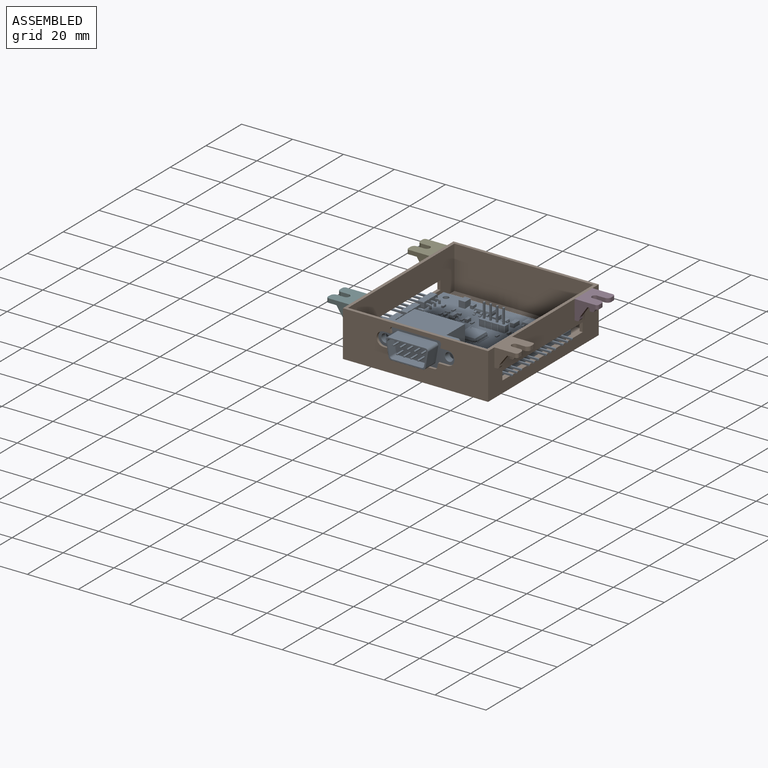
[diagram: assembled view]
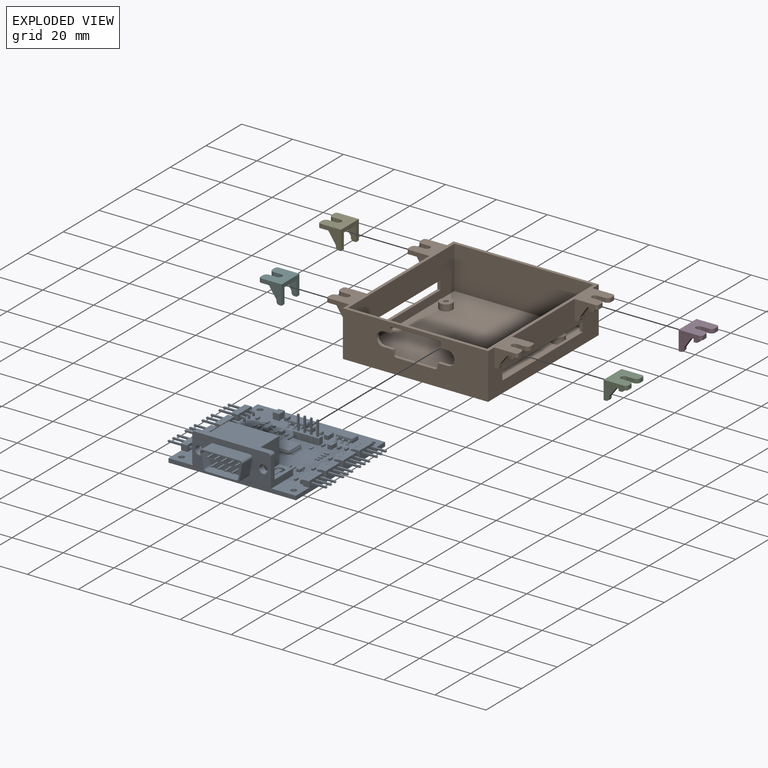
[diagram: exploded view]
GUIDED TOUR — FREECAD ASSEMBLY "ControlBox_Stuffed"

This assembly has 6 components, labeled P0..P5 below (a component is one placed body or linked part; the same part can appear more than once), held together by 0 modeled joints plus 5 derived contact edges. A joint is a constraint between two components; its type names the relative motion it leaves free:
  CONTACT — a derived adjacency edge — the two components touch in the source model (clearance under 2% of the assembly's diagonal); it is measured from the geometry, not a modeled constraint.
Axis/direction vectors are unit vectors and 'through' points are millimeter coordinates, both in the assembly's world frame.

MATES
  1. CONTACT "contact_0_1": P0 <-> P1, contact direction (0.000, 1.000, 0.000) through (22.85, -27.02, 3.55) mm (derived from contact, not a modeled constraint)
  2. CONTACT "contact_1_2": P1 <-> P2, contact direction (1.000, 0.000, 0.000) through (28.50, -17.50, 16.40) mm (derived from contact, not a modeled constraint)
  3. CONTACT "contact_1_3": P1 <-> P3, contact direction (1.000, 0.000, 0.000) through (28.50, 27.50, 16.40) mm (derived from contact, not a modeled constraint)
  4. CONTACT "contact_1_4": P1 <-> P4, contact direction (-1.000, 0.000, 0.000) through (-28.50, 17.50, 18.00) mm (derived from contact, not a modeled constraint)
  5. CONTACT "contact_1_5": P1 <-> P5, contact direction (-1.000, 0.000, 0.000) through (-28.50, -27.50, 16.40) mm (derived from contact, not a modeled constraint)

ASSEMBLY ORDER
  1. P1 — the base component [order heuristic]
  2. P0 — core [order heuristic]
  3. P3 [order verified]
  4. P5 [order verified]
  5. P2 [order verified]
  6. P4 [order verified]
(P3, P5 verified with a relaxed clearance tolerance: the source model stores slight part interference there.)
Order-tag legend:
  [order verified] — this step's position reverses a verified removal order: the component was checked to insert without passing through the ones already placed.
  [order heuristic] — the first 2 components form the assembly's core: parts whose collision-free extraction could not be verified, listed in mate-graph order.

Of the 6 components, 5 carry a construction recipe — the FreeCAD feature program (sketches with constraints, then the solid features that consume them) that regenerates the part from scratch, quoted from this document or from the linked companion document it references; the rest are supplied as boundary geometry only. The tour below walks the components in assembly order: each is shown spotlighted twice — in the assembled view, then in the exploded view, where a leader line traces a displaced component back to its assembled socket (components that stay in place when exploded have no leader line; saturated green if recipe-attached, orange if geometry-only; every other component desaturated gray) — followed by its recipe or geometry summary and the mates that hold it.
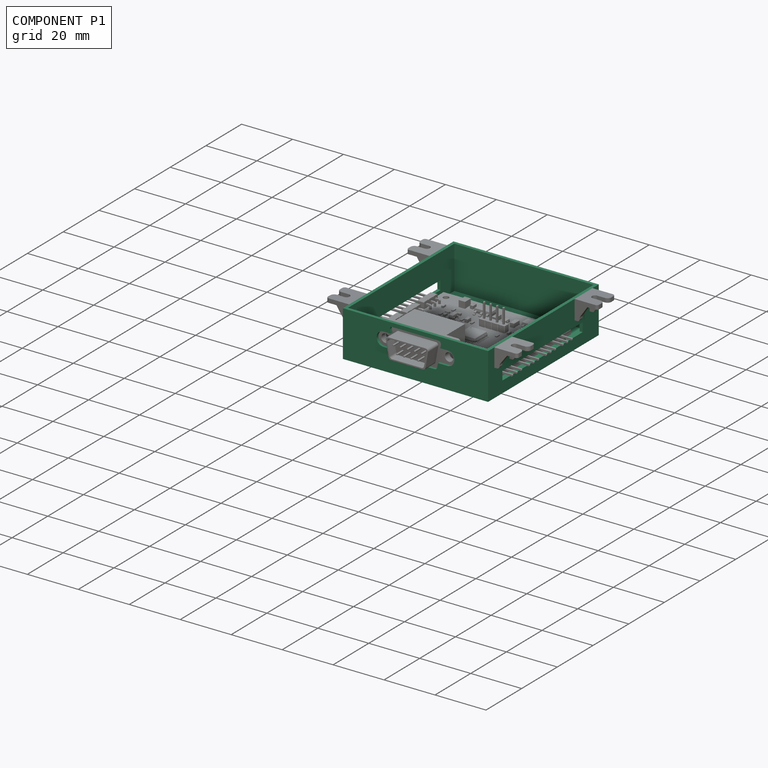
[diagram: component P1 — assembled]
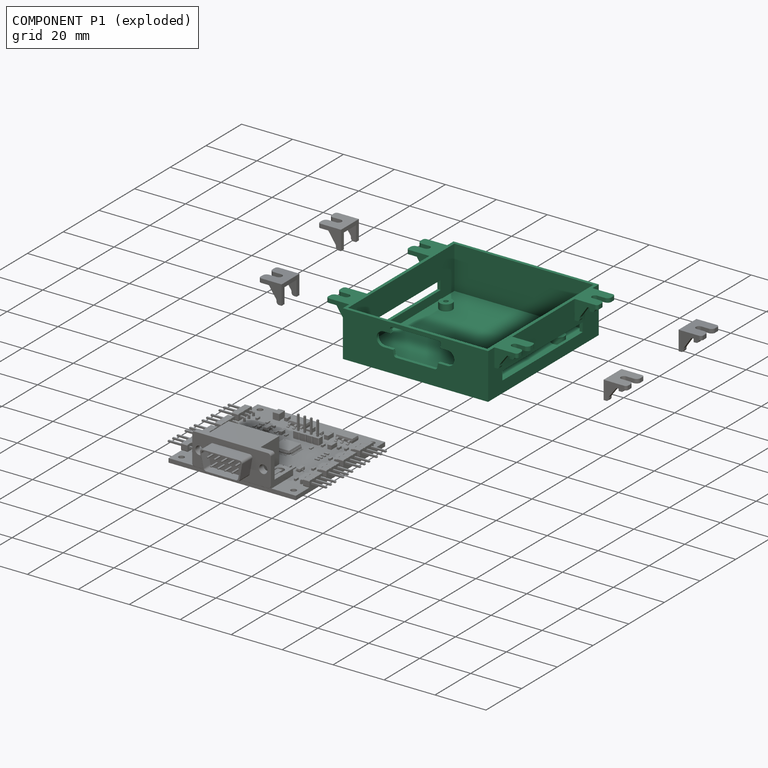
[diagram: component P1 — exploded]
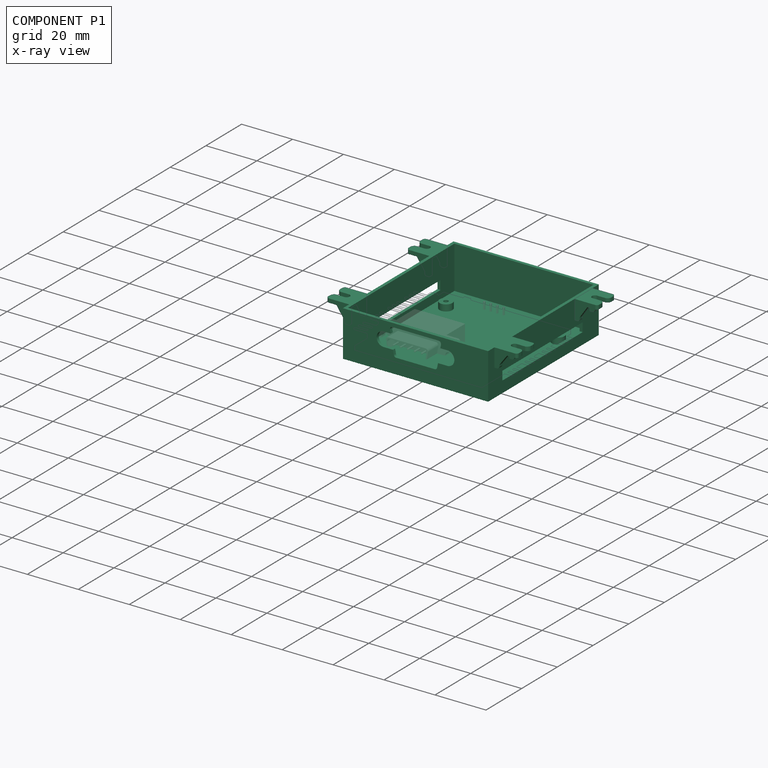
[diagram: component P1 — x-ray view]
COMPONENT P1 — recipe-attached ("Body", modeled in this document).
Held by: resting contact with P0 (derived edge); resting contact with P2 (derived edge); resting contact with P3 (derived edge); resting contact with P4 (derived edge); resting contact with P5 (derived edge).
Construction recipe (the document's own serialized feature program — sketch geometry with constraints, then the solid features built on it; lengths are millimeters unless a unit is written):

FEATURE [Sketcher::SketchObject] Sketch
  FullyConstrained = true
  MapMode = 5
  Support = -> [XY_Plane]
  expr: Constraints[8] = <<Params>>.box_width_external
  expr: Constraints[9] = <<Params>>.box_length_external
  sketch-geometry (4):
    g0: LineSegment StartX=-28.5 StartY=31 StartZ=0 EndX=28.5 EndY=31 EndZ=0
    g1: LineSegment StartX=28.5 StartY=31 StartZ=0 EndX=28.5 EndY=-31 EndZ=0
    g2: LineSegment StartX=28.5 StartY=-31 StartZ=0 EndX=-28.5 EndY=-31 EndZ=0
    g3: LineSegment StartX=-28.5 StartY=-31 StartZ=0 EndX=-28.5 EndY=31 EndZ=0
  constraints (10):
    c: Coincident(g0,g1)
    c: Coincident(g1,g2)
    c: Coincident(g2,g3)
    c: Coincident(g3,g0)
    c: Horizontal(g2)
    c: Vertical(g3)
    c: Symmetric(g0,g1,g-1)
    c: Symmetric(g0,g0,g-2)
    c: DistanceY(g2,g0) = 62
    c: DistanceX(g0,g0) = 57
FEATURE [PartDesign::Pad] Pad  label="BoxSkin"
  Direction = (0,0,1)
  Length = 18
  Length2 = 10
  Profile = -> Sketch
  ReferenceAxis = -> Sketch [N_Axis]
  Type = 0
  expr: Length = <<Params>>.box_height
FEATURE [PartDesign::Plane] DatumPlane  label="PlaneCavity"
  Length = 88.6382
  MapMode = 5
  Placement = pos=(0,0,18) rot=(0,0,1;0rad)
  ResizeMode = 0
  Support = -> [Pad]
  Width = 75.6382
FEATURE [Sketcher::SketchObject] Sketch001
  FullyConstrained = true
  MapMode = 5
  Placement = pos=(0,0,18) rot=(0,0,1;0rad)
  Support = -> [DatumPlane]
  expr: Constraints[8] = <<Params>>.box_length_internal
  expr: Constraints[9] = <<Params>>.box_width_internal
  sketch-geometry (4):
    g0: LineSegment StartX=-27.3 StartY=29.8 StartZ=0 EndX=27.3 EndY=29.8 EndZ=0
    g1: LineSegment StartX=27.3 StartY=29.8 StartZ=0 EndX=27.3 EndY=-29.8 EndZ=0
    g2: LineSegment StartX=27.3 StartY=-29.8 StartZ=0 EndX=-27.3 EndY=-29.8 EndZ=0
    g3: LineSegment StartX=-27.3 StartY=-29.8 StartZ=0 EndX=-27.3 EndY=29.8 EndZ=0
  constraints (10):
    c: Coincident(g0,g1)
    c: Coincident(g1,g2)
    c: Coincident(g2,g3)
    c: Coincident(g3,g0)
    c: Horizontal(g2)
    c: Vertical(g1)
    c: Symmetric(g0,g0,g-2)
    c: Symmetric(g0,g2,g-1)
    c: DistanceX(g0,g0) = 54.6
    c: DistanceY(g2,g0) = 59.6
FEATURE [PartDesign::Pocket] Pocket  label="Cavity"
  BaseFeature = -> Pad
  Direction = (0,0,-1)
  Length = 16.8
  Length2 = 5
  Profile = -> Sketch001
  ReferenceAxis = -> Sketch001 [N_Axis]
  Type = 0
  expr: Length = <<Params>>.box_depth
FEATURE [PartDesign::Plane] DatumPlane001  label="PlaneSideWindows"
  Length = 73.1355
  MapMode = 5
  Placement = pos=(28.5,0,0) rot=(0.57735,0.57735,0.57735;2.0944rad)
  ResizeMode = 0
  Support = -> [Pocket]
  Width = 61.1355
FEATURE [Sketcher::SketchObject] Sketch002
  FullyConstrained = true
  MapMode = 5
  Placement = pos=(28.5,0,0) rot=(0.57735,0.57735,0.57735;2.0944rad)
  Support = -> [Pocket]
  expr: Constraints[10] = <<Params>>.side_window_y
  expr: Constraints[11] = <<Params>>.side_window_z
  expr: Constraints[8] = <<Params>>.side_window_length
  expr: Constraints[9] = <<Params>>.side_window_height
  sketch-geometry (4):
    g0: LineSegment StartX=-23 StartY=8 StartZ=0 EndX=22 EndY=8 EndZ=0
    g1: LineSegment StartX=22 StartY=8 StartZ=0 EndX=22 EndY=4.5 EndZ=0
    g2: LineSegment StartX=22 StartY=4.5 StartZ=0 EndX=-23 EndY=4.5 EndZ=0
    g3: LineSegment StartX=-23 StartY=4.5 StartZ=0 EndX=-23 EndY=8 EndZ=0
  constraints (12):
    c: Coincident(g0,g1)
    c: Coincident(g1,g2)
    c: Coincident(g2,g3)
    c: Coincident(g3,g0)
    c: Horizontal(g0)
    c: Horizontal(g2)
    c: Vertical(g1)
    c: Vertical(g3)
    c: DistanceX(g0,g0) = 45
    c: DistanceY(g2,g0) = 3.5
    c: DistanceX(g2,g-1) = 23
    c: DistanceY(g-1,g2) = 4.5
FEATURE [PartDesign::Pocket] Pocket001  label="SideWindows"
  BaseFeature = -> Pocket
  Direction = (-1,0,0)
  Length = 5
  Length2 = 5
  Profile = -> Sketch002
  ReferenceAxis = -> Sketch002 [N_Axis]
  Type = 1
FEATURE [PartDesign::SubShapeBinder] Binder
  BindCopyOnChange = 0
  BindMode = 0
  ClaimChildren = false
  Context = -> Body [Binder.]
  Fuse = false
  MakeFace = true
  OffsetFill = false
  OffsetIntersection = false
  OffsetJoinType = 0
  OffsetOpenResult = false
  PartialLoad = false
  Relative = true
  Support = -> [Board_42b7[Board_Geoms_42b7.Pcb_42b7.Edge14,Board_Geoms_42b7.Pcb_42b7.Edge107,Board_Geoms_42b7.Pcb_42b7.Edge140,Board_Geoms_42b7.Pcb_42b7.Edge65]]
  _Version = 2
FEATURE [Sketcher::SketchObject] Sketch003
  ExternalGeometry = -> [Pocket001,Binder]
  FullyConstrained = true
  MapMode = 5
  Placement = pos=(0,0,1.2) rot=(0,0,1;0rad)
  Support = -> [Pocket001]
  sketch-geometry (8):
    g0: Circle CenterX=22 CenterY=17.5 CenterZ=0 NormalX=0 NormalY=0 NormalZ=1 AngleXU=0 Radius=0.9
    g1: Circle CenterX=-22 CenterY=17.5 CenterZ=0 NormalX=0 NormalY=0 NormalZ=1 AngleXU=0 Radius=0.9
    g2: Circle CenterX=-22 CenterY=-26.5 CenterZ=0 NormalX=0 NormalY=0 NormalZ=1 AngleXU=0 Radius=0.9
    g3: Circle CenterX=22 CenterY=-26.5 CenterZ=0 NormalX=0 NormalY=0 NormalZ=1 AngleXU=0 Radius=0.9
    g4: Circle CenterX=22 CenterY=-26.5 CenterZ=0 NormalX=0 NormalY=0 NormalZ=1 AngleXU=0 Radius=2.5
    g5: Circle CenterX=-22 CenterY=-26.5 CenterZ=0 NormalX=0 NormalY=0 NormalZ=1 AngleXU=0 Radius=2.5
    g6: Circle CenterX=22 CenterY=17.5 CenterZ=0 NormalX=0 NormalY=0 NormalZ=1 AngleXU=0 Radius=2.5
    g7: Circle CenterX=-22 CenterY=17.5 CenterZ=0 NormalX=0 NormalY=0 NormalZ=1 AngleXU=0 Radius=2.5
  constraints (16):
    c: Equal(g1,g0)
    c: Equal(g1,g2)
    c: Equal(g1,g3)
    c: Diameter(g1) = 1.8
    c: Coincident(g3,g-10)
    c: Coincident(g4,g3)
    c: Coincident(g2,g-11)
    c: Coincident(g5,g2)
    c: Coincident(g-8,g1)
    c: Coincident(g7,g1)
    c: Coincident(g0,g-9)
    c: Coincident(g6,g0)
    c: Diameter(g7) = 5
    c: Equal(g7,g5)
    c: Equal(g5,g4)
    c: Equal(g4,g6)
FEATURE [PartDesign::Pad] Pad001  label="FixingBosses"
  BaseFeature = -> Pocket001
  Direction = (0,0,1)
  Length = 2.5
  Length2 = 10
  Profile = -> Sketch003
  ReferenceAxis = -> Sketch003 [N_Axis]
  Type = 0
FEATURE [PartDesign::Boolean] Boolean
  BaseFeature = -> Pad001
  Group = -> [Body002,Body001,Body004,Body003]
  Type = 0
FEATURE [PartDesign::Plane] DatumPlane006  label="PlaneDB9Cutout"
  AttachmentOffset = pos=(0,0,1) rot=(0,0,1;0rad)
  Length = 87.2474
  MapMode = 5
  Placement = pos=(0,-32,2e-16) rot=(1,0,0;1.5708rad)
  ResizeMode = 0
  Support = -> [Boolean]
  Width = 62.2474
FEATURE [Sketcher::SketchObject] Sketch012
  FullyConstrained = true
  MapMode = 5
  Placement = pos=(0,-32,2e-16) rot=(1,0,0;1.5708rad)
  Support = -> [DatumPlane006]
  sketch-geometry (16):
    g0: LineSegment StartX=-9.02284 StartY=16.5 StartZ=0 EndX=9.02284 EndY=16.5 EndZ=0
    g1: LineSegment StartX=-10 StartY=15.2875 StartZ=0 EndX=-9.72 EndY=14 EndZ=0
    g2: LineSegment StartX=-7.5195 StartY=6 StartZ=0 EndX=7.5195 EndY=6 EndZ=0
    g3: LineSegment StartX=8.5 StartY=6.8035 StartZ=0 EndX=8.84 EndY=8.5 EndZ=0
    g4: ArcOfCircle CenterX=-12.5 CenterY=11.25 CenterZ=0 NormalX=0 NormalY=0 NormalZ=1 AngleXU=0 Radius=2.75 StartAngle=1.5708 EndAngle=4.71239
    g5: ArcOfCircle CenterX=12.5 CenterY=11.25 CenterZ=0 NormalX=0 NormalY=0 NormalZ=1 AngleXU=0 Radius=2.75 StartAngle=4.71239 EndAngle=7.85398
    g6: ArcOfCircle CenterX=9.02284 CenterY=15.5 CenterZ=0 NormalX=0 NormalY=0 NormalZ=1 AngleXU=0 Radius=1 StartAngle=6.06904 EndAngle=7.85398
    g7: ArcOfCircle CenterX=-9.02284 CenterY=15.5 CenterZ=0 NormalX=0 NormalY=0 NormalZ=1 AngleXU=0 Radius=1 StartAngle=1.5708 EndAngle=3.35574
    g8: ArcOfCircle CenterX=-7.5195 CenterY=7 CenterZ=0 NormalX=0 NormalY=0 NormalZ=1 AngleXU=0 Radius=1 StartAngle=3.33938 EndAngle=4.71239
    g9: ArcOfCircle CenterX=7.5195 CenterY=7 CenterZ=0 NormalX=0 NormalY=0 NormalZ=1 AngleXU=0 Radius=1 StartAngle=4.71239 EndAngle=6.08539
    g10: LineSegment StartX=-12.5 StartY=14 StartZ=0 EndX=-9.72 EndY=14 EndZ=0
    g11: LineSegment StartX=-12.5 StartY=8.5 StartZ=0 EndX=-8.84 EndY=8.5 EndZ=0
    g12: LineSegment StartX=-8.84 StartY=8.5 StartZ=0 EndX=-8.5 EndY=6.8035 EndZ=0
    g13: LineSegment StartX=12.5 StartY=14 StartZ=0 EndX=9.72 EndY=14 EndZ=0
    g14: LineSegment StartX=12.5 StartY=8.5 StartZ=0 EndX=8.84 EndY=8.5 EndZ=0
    g15: LineSegment StartX=9.72 StartY=14 StartZ=0 EndX=10 EndY=15.2875 EndZ=0
  constraints (41):
    c: DistanceX(g4,g5) = 25
    c: Diameter(g4) = 5.5
    c: Equal(g5,g4)
    c: Symmetric(g4,g5,g-2)
    c: Tangent(g0,g6) = 1.5708
    c: Coincident(g15,g6) = -1.5708
    c: Tangent(g1,g7) = -1.5708
    c: Tangent(g0,g7) = 1.5708
    c: Coincident(g12,g8) = -1.5708
    c: Tangent(g2,g8) = -1.5708
    c: Tangent(g3,g9) = -1.5708
    c: Tangent(g2,g9) = -1.5708
    c: Diameter(g7) = 2
    c: Equal(g7,g6)
    c: Equal(g8,g9)
    c: Equal(g9,g7)
    c: Symmetric(g0,g0,g-2)
    c: Symmetric(g2,g2,g-2)
    c: DistanceX(g1,g15) = 20
    c: DistanceX(g12,g3) = 17
    c: DistanceY(g2,g0) = 10.5
    c: DistanceY(g-1,g2) = 6
    c: DistanceY(g2,g4) = 5.25
    c: Horizontal(g10)
    c: Horizontal(g11)
    c: Tangent(g4,g11) = -1.5708
    c: Tangent(g4,g10) = 1.5708
    c: Coincident(g1,g10)
    c: Coincident(g12,g11)
    c: DistanceX(g4,g1) = 2.78
    c: DistanceX(g4,g11) = 3.66
    c: DistanceX(g11,g8) = 0.34
    c: Horizontal(g13)
    c: Horizontal(g14)
    c: Tangent(g5,g13) = -1.5708
    c: Tangent(g5,g14) = 1.5708
    c: Coincident(g3,g14)
    c: Coincident(g15,g13)
    c: Equal(g1,g15)
    c: DistanceX(g13,g5) = 2.78
    c: DistanceX(g3,g3) = 0.34
FEATURE [PartDesign::Pocket] Pocket002  label="DB9Cutout"
  BaseFeature = -> Boolean
  Direction = (0,1,-2e-16)
  Length = 5
  Length2 = 5
  Profile = -> Sketch012
  ReferenceAxis = -> Sketch012 [N_Axis]
  Type = 0
FEATURE [PartDesign::Body] Body
  Group = -> [Sketch,Pad,DatumPlane,Sketch001,Pocket,DatumPlane001,Sketch002,Pocket001,Sketch003,Pad001,Boolean,DatumPlane006,Sketch012,Binder,Pocket002]
  Origin = -> Origin
  Tip = -> Pocket002
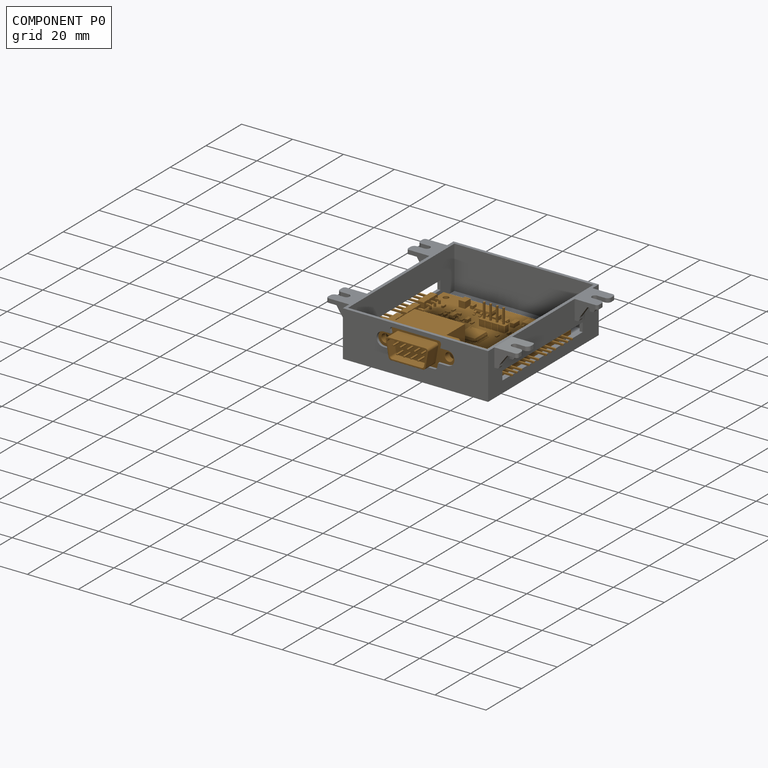
[diagram: component P0 — assembled]
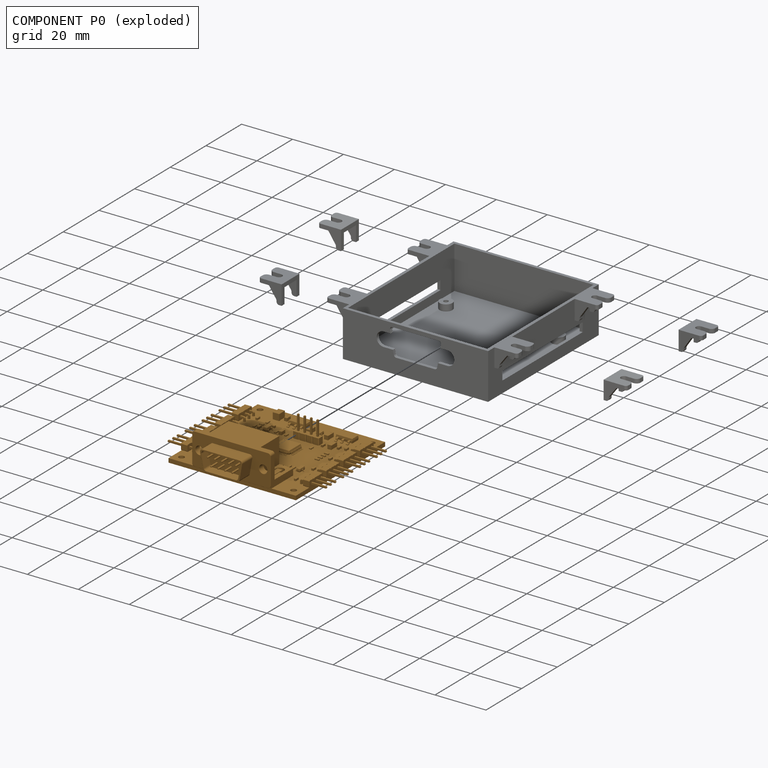
[diagram: component P0 — exploded]
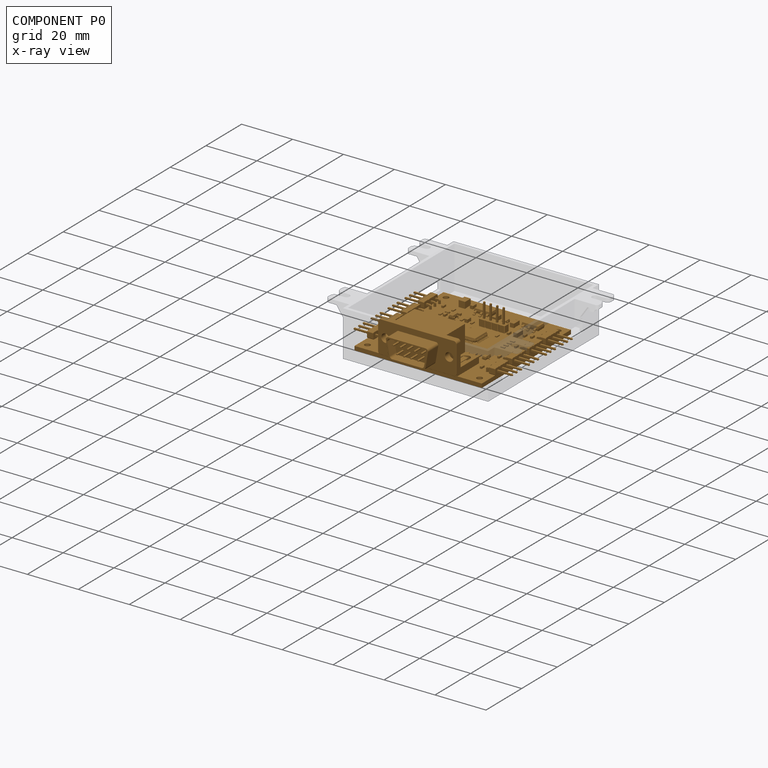
[diagram: component P0 — x-ray view]
COMPONENT P0 — geometry summary ("DGT-01"; no construction recipe available for this part):
  bounding box: 62.3 x 56.3 x 17.9 mm
  tessellated surface: 80,604 triangles
  volume: 8081 mm^3 (13% of its bounding box)
Held by: resting contact with P1 (derived edge).
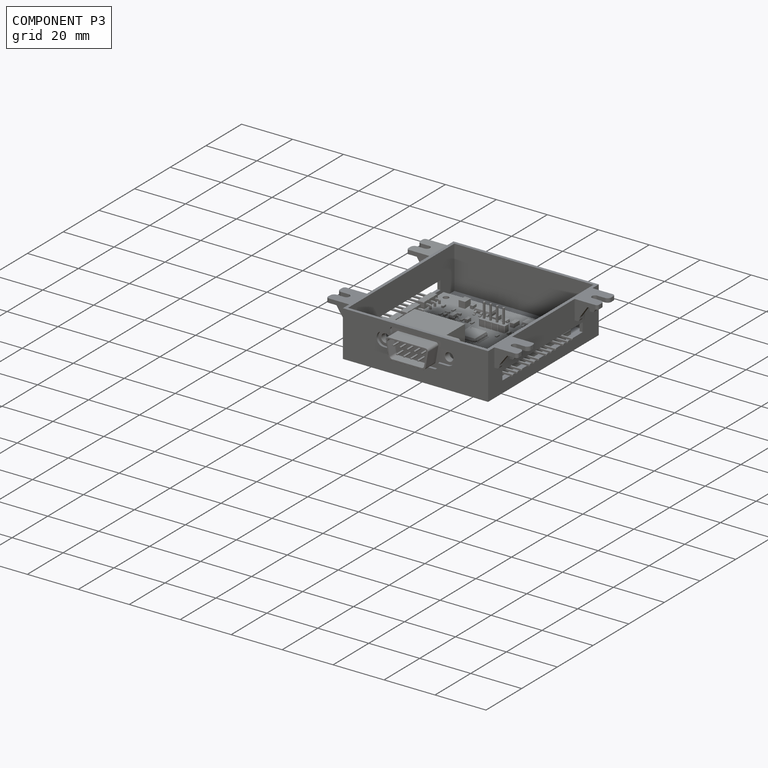
[diagram: component P3 — assembled]
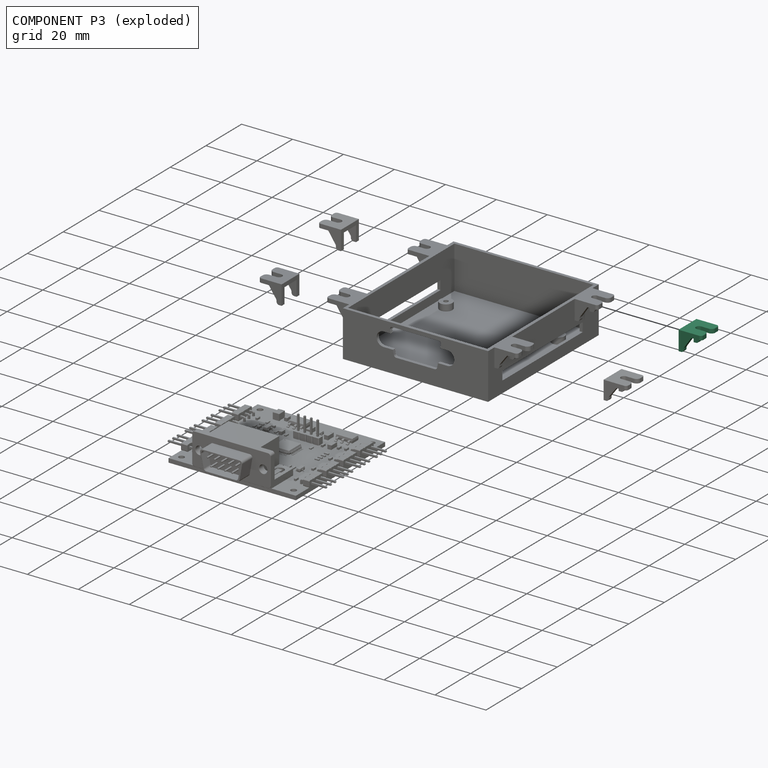
[diagram: component P3 — exploded]
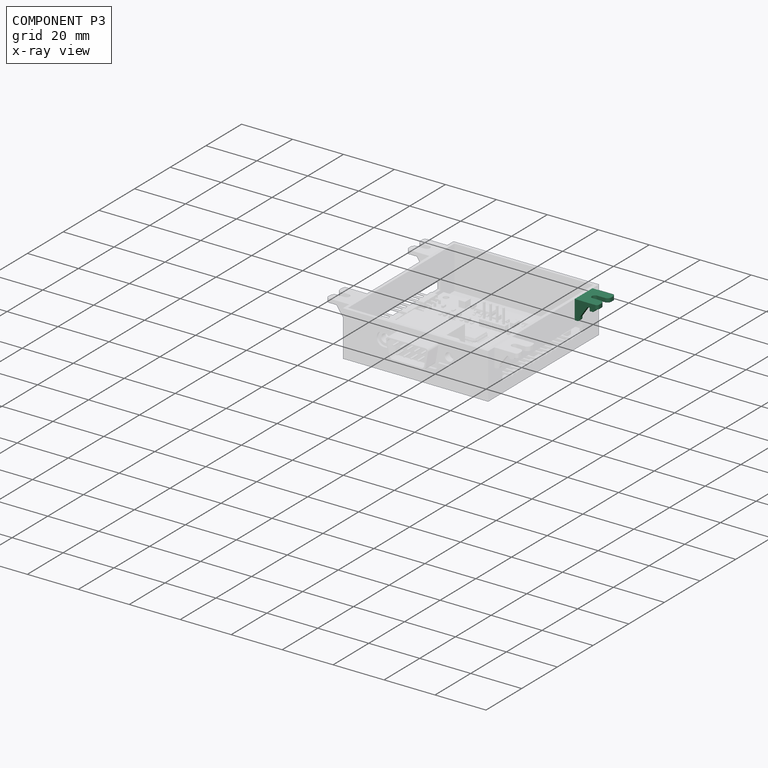
[diagram: component P3 — x-ray view]
COMPONENT P3 — recipe-attached ("Tab2", modeled in this document).
Held by: resting contact with P1 (derived edge).
Construction recipe (the document's own serialized feature program — sketch geometry with constraints, then the solid features built on it; lengths are millimeters unless a unit is written):

FEATURE [Sketcher::SketchObject] Sketch006
  FullyConstrained = true
  MapMode = 5
  Support = -> [XY_Plane010]
  expr: Constraints[13] = <<Params002>>.tab_length
  expr: Constraints[14] = <<Params002>>.tab_width
  expr: Constraints[19] = <<Params002>>.tab_hole_diameter
  expr: Constraints[20] = <<Params002>>.tab_hole_x
  sketch-geometry (8):
    g0: LineSegment StartX=-4.5 StartY=5 StartZ=0 EndX=4.5 EndY=5 EndZ=0
    g1: LineSegment StartX=4.5 StartY=5 StartZ=0 EndX=4.5 EndY=1.2 EndZ=0
    g2: LineSegment StartX=4.5 StartY=-5 StartZ=0 EndX=-4.5 EndY=-5 EndZ=0
    g3: LineSegment StartX=-4.5 StartY=-5 StartZ=0 EndX=-4.5 EndY=5 EndZ=0
    g4: ArcOfCircle CenterX=-3e-16 CenterY=0 CenterZ=0 NormalX=0 NormalY=0 NormalZ=1 AngleXU=0 Radius=1.2 StartAngle=1.5708 EndAngle=4.71239
    g5: LineSegment StartX=-5e-16 StartY=1.2 StartZ=0 EndX=4.5 EndY=1.2 EndZ=0
    g6: LineSegment StartX=4.5 StartY=-1.2 StartZ=0 EndX=-9e-16 EndY=-1.2 EndZ=0
    g7: LineSegment StartX=4.5 StartY=-1.2 StartZ=0 EndX=4.5 EndY=-5 EndZ=0
  constraints (21):
    c: Coincident(g0,g1)
    c: Coincident(g7,g2)
    c: Coincident(g2,g3)
    c: Coincident(g3,g0)
    c: Horizontal(g2)
    c: Vertical(g1)
    c: Symmetric(g0,g0,g-2)
    c: Symmetric(g0,g2,g-1)
    c: PointOnObject(g4,g-1)
    c: Horizontal(g5)
    c: Horizontal(g6)
    c: Coincident(g1,g5)
    c: Coincident(g7,g6)
    c: DistanceX(g0,g0) = 9
    c: DistanceY(g2,g0) = 10
    c: Tangent(g4,g5) = 1.5708
    c: Tangent(g6,g4) = 1.5708
    c: Vertical(g7)
    c: Vertical(g6,g1)
    c: Diameter(g4) = 2.4
    c: DistanceX(g0,g4) = 4.5
FEATURE [PartDesign::Pad] Pad004
  Direction = (0,0,1)
  Length = 1.6
  Length2 = 10
  Profile = -> Sketch006
  ReferenceAxis = -> Sketch006 [N_Axis]
  Type = 0
  expr: Length = <<Params002>>.tab_thickness
FEATURE [PartDesign::Plane] DatumPlane003  label="PlaneRib001"
  Length = 60
  MapMode = 5
  Placement = pos=(0,-5,0) rot=(1,0,0;1.5708rad)
  ResizeMode = 0
  Support = -> [Pad004]
  Width = 60
FEATURE [Sketcher::SketchObject] Sketch007
  ExternalGeometry = -> [Pad004]
  FullyConstrained = true
  MapMode = 5
  Placement = pos=(0,-5,0) rot=(1,0,0;1.5708rad)
  Support = -> [DatumPlane003]
  expr: Constraints[11] = <<Params002>>.tab_rib_height
  expr: Constraints[12] = <<Params002>>.tab_rib_length
  expr: Constraints[13] = <<Params002>>.tab_rib_insert
  expr: Constraints[6] = <<Params002>>.tab_height
  sketch-geometry (5):
    g0: LineSegment StartX=-4.5 StartY=0 StartZ=0 EndX=-4.5 EndY=-6 EndZ=0
    g1: LineSegment StartX=-4.5 StartY=-6 StartZ=0 EndX=-2.5 EndY=-6 EndZ=0
    g2: LineSegment StartX=0.5 StartY=0 StartZ=0 EndX=-4.5 EndY=0 EndZ=0
    g3: LineSegment StartX=-2.5 StartY=-6 StartZ=0 EndX=-2.5 EndY=-4.4 EndZ=0
    g4: LineSegment StartX=-2.5 StartY=-4.4 StartZ=0 EndX=0.5 EndY=0 EndZ=0
  constraints (14):
    c: Coincident(g0,g-3)
    c: Vertical(g0)
    c: Coincident(g1,g0)
    c: PointOnObject(g2,g-1)
    c: Coincident(g2,g0)
    c: Horizontal(g1)
    c: DistanceY(g0,g0) = 6
    c: Coincident(g3,g1)
    c: Vertical(g3)
    c: Coincident(g4,g3)
    c: Coincident(g4,g2)
    c: DistanceY(g3,g-1) = 4.4
    c: DistanceX(g0,g2) = 5
    c: DistanceX(g0,g1) = 2
FEATURE [PartDesign::Pad] Pad005  label="TabRib004"
  BaseFeature = -> Pad004
  Direction = (0,-1,2e-16)
  Length = 1.6
  Length2 = 10
  Profile = -> Sketch007
  ReferenceAxis = -> Sketch007 [N_Axis]
  Reversed = true
  Type = 0
  expr: Length = <<Params002>>.tab_rib_thickness
FEATURE [PartDesign::LinearPattern] LinearPattern001  label="TabRib003"
  BaseFeature = -> Pad005
  Direction = -> Y_Axis010
  Length = 8.4
  Occurrences = 2
  Originals = -> [Pad005]
  expr: Length = <<Params002>>.tab_ribs_gap
FEATURE [PartDesign::Fillet] Fillet004
  Base = -> LinearPattern001 [Edge51,Edge52]
  BaseFeature = -> LinearPattern001
  Radius = 1
  SupportTransform = false
  UseAllEdges = false
FEATURE [PartDesign::Fillet] Fillet005
  Base = -> Fillet004 [Edge14,Edge52]
  BaseFeature = -> Fillet004
  Radius = 1
  SupportTransform = false
  UseAllEdges = false
FEATURE [PartDesign::Fillet] Fillet006
  Base = -> Fillet005 [Edge19,Edge53]
  BaseFeature = -> Fillet005
  Radius = 1
  SupportTransform = false
  UseAllEdges = false
FEATURE [PartDesign::Fillet] Fillet007
  Base = -> Fillet006 [Edge38,Edge43]
  BaseFeature = -> Fillet006
  Radius = 1.5
  SupportTransform = false
  UseAllEdges = false
FEATURE [PartDesign::Body] Body002  label="Tab2"
  Group = -> [Sketch006,Pad004,DatumPlane003,Sketch007,Pad005,LinearPattern001,Fillet004,Fillet005,Fillet006,Fillet007]
  Origin = -> Origin010
  Placement = pos=(33,22.5,16.4) rot=(0,0,1;0rad)
  Tip = -> Fillet007
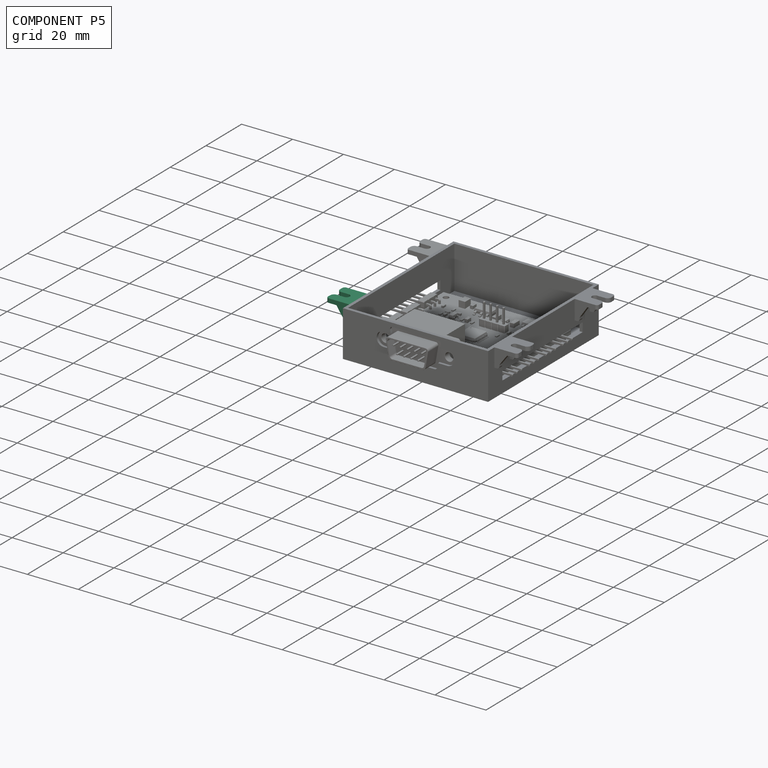
[diagram: component P5 — assembled]
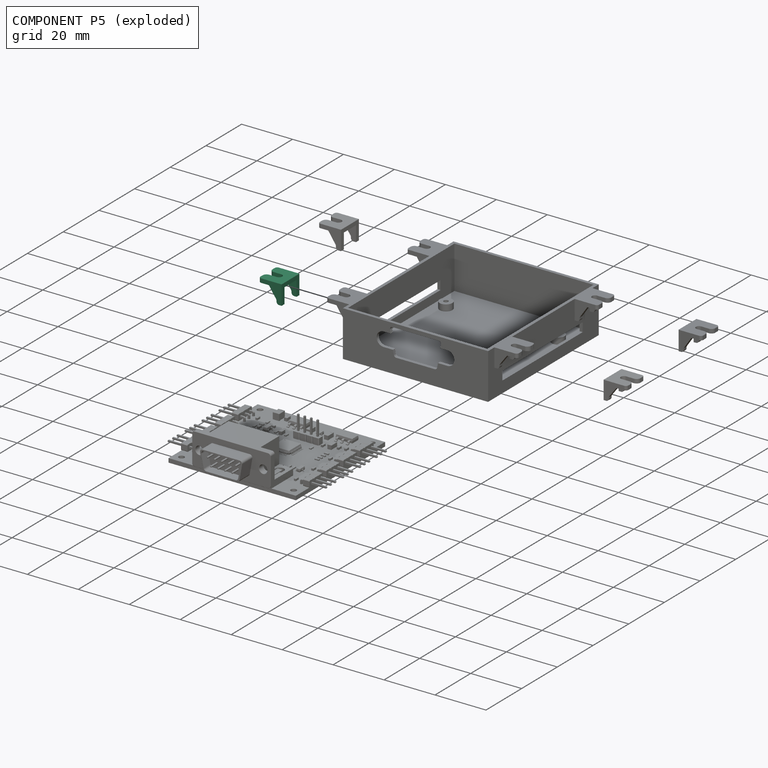
[diagram: component P5 — exploded]
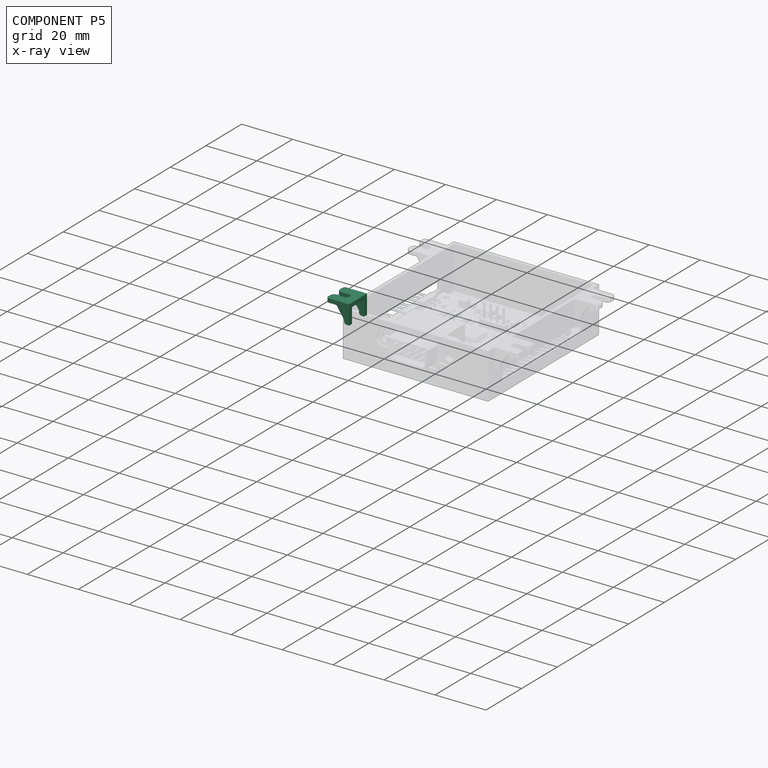
[diagram: component P5 — x-ray view]
COMPONENT P5 — recipe-attached ("Tab4", modeled in this document).
Held by: resting contact with P1 (derived edge).
Construction recipe (the document's own serialized feature program — sketch geometry with constraints, then the solid features built on it; lengths are millimeters unless a unit is written):

FEATURE [Sketcher::SketchObject] Sketch010
  FullyConstrained = true
  MapMode = 5
  Support = -> [XY_Plane012]
  expr: Constraints[13] = <<Params004>>.tab_length
  expr: Constraints[14] = <<Params004>>.tab_width
  expr: Constraints[19] = <<Params004>>.tab_hole_diameter
  expr: Constraints[20] = <<Params004>>.tab_hole_x
  sketch-geometry (8):
    g0: LineSegment StartX=-4.5 StartY=5 StartZ=0 EndX=4.5 EndY=5 EndZ=0
    g1: LineSegment StartX=4.5 StartY=5 StartZ=0 EndX=4.5 EndY=1.25 EndZ=0
    g2: LineSegment StartX=4.5 StartY=-5 StartZ=0 EndX=-4.5 EndY=-5 EndZ=0
    g3: LineSegment StartX=-4.5 StartY=-5 StartZ=0 EndX=-4.5 EndY=5 EndZ=0
    g4: ArcOfCircle CenterX=-3e-16 CenterY=0 CenterZ=0 NormalX=0 NormalY=0 NormalZ=1 AngleXU=0 Radius=1.25 StartAngle=1.5708 EndAngle=4.71239
    g5: LineSegment StartX=-5e-16 StartY=1.25 StartZ=0 EndX=4.5 EndY=1.25 EndZ=0
    g6: LineSegment StartX=4.5 StartY=-1.25 StartZ=0 EndX=-9e-16 EndY=-1.25 EndZ=0
    g7: LineSegment StartX=4.5 StartY=-1.25 StartZ=0 EndX=4.5 EndY=-5 EndZ=0
  constraints (21):
    c: Coincident(g0,g1)
    c: Coincident(g7,g2)
    c: Coincident(g2,g3)
    c: Coincident(g3,g0)
    c: Horizontal(g2)
    c: Vertical(g1)
    c: Symmetric(g0,g0,g-2)
    c: Symmetric(g0,g2,g-1)
    c: PointOnObject(g4,g-1)
    c: Horizontal(g5)
    c: Horizontal(g6)
    c: Coincident(g1,g5)
    c: Coincident(g7,g6)
    c: DistanceX(g0,g0) = 9
    c: DistanceY(g2,g0) = 10
    c: Tangent(g4,g5) = 1.5708
    c: Tangent(g6,g4) = 1.5708
    c: Vertical(g7)
    c: Vertical(g6,g1)
    c: Diameter(g4) = 2.5
    c: DistanceX(g0,g4) = 4.5
FEATURE [PartDesign::Pad] Pad008
  Direction = (0,0,1)
  Length = 1.6
  Length2 = 10
  Profile = -> Sketch010
  ReferenceAxis = -> Sketch010 [N_Axis]
  Type = 0
  expr: Length = <<Params004>>.tab_thickness
FEATURE [PartDesign::Plane] DatumPlane005  label="PlaneRib003"
  Length = 60
  MapMode = 5
  Placement = pos=(0,-5,0) rot=(1,0,0;1.5708rad)
  ResizeMode = 0
  Support = -> [Pad008]
  Width = 60
FEATURE [Sketcher::SketchObject] Sketch011
  ExternalGeometry = -> [Pad008]
  FullyConstrained = true
  MapMode = 5
  Placement = pos=(0,-5,0) rot=(1,0,0;1.5708rad)
  Support = -> [DatumPlane005]
  expr: Constraints[11] = <<Params004>>.tab_rib_height
  expr: Constraints[12] = <<Params004>>.tab_rib_length
  expr: Constraints[13] = <<Params004>>.tab_rib_insert
  expr: Constraints[6] = <<Params004>>.tab_height
  sketch-geometry (5):
    g0: LineSegment StartX=-4.5 StartY=0 StartZ=0 EndX=-4.5 EndY=-6 EndZ=0
    g1: LineSegment StartX=-4.5 StartY=-6 StartZ=0 EndX=-2.5 EndY=-6 EndZ=0
    g2: LineSegment StartX=0.5 StartY=0 StartZ=0 EndX=-4.5 EndY=0 EndZ=0
    g3: LineSegment StartX=-2.5 StartY=-6 StartZ=0 EndX=-2.5 EndY=-4.4 EndZ=0
    g4: LineSegment StartX=-2.5 StartY=-4.4 StartZ=0 EndX=0.5 EndY=0 EndZ=0
  constraints (14):
    c: Coincident(g0,g-3)
    c: Vertical(g0)
    c: Coincident(g1,g0)
    c: PointOnObject(g2,g-1)
    c: Coincident(g2,g0)
    c: Horizontal(g1)
    c: DistanceY(g0,g0) = 6
    c: Coincident(g3,g1)
    c: Vertical(g3)
    c: Coincident(g4,g3)
    c: Coincident(g4,g2)
    c: DistanceY(g3,g-1) = 4.4
    c: DistanceX(g0,g2) = 5
    c: DistanceX(g0,g1) = 2
FEATURE [PartDesign::Pad] Pad009  label="TabRib008"
  BaseFeature = -> Pad008
  Direction = (0,-1,2e-16)
  Length = 1.6
  Length2 = 10
  Profile = -> Sketch011
  ReferenceAxis = -> Sketch011 [N_Axis]
  Reversed = true
  Type = 0
  expr: Length = <<Params004>>.tab_rib_thickness
FEATURE [PartDesign::LinearPattern] LinearPattern003  label="TabRib007"
  BaseFeature = -> Pad009
  Direction = -> Y_Axis012
  Length = 8.4
  Occurrences = 2
  Originals = -> [Pad009]
  expr: Length = <<Params004>>.tab_ribs_gap
FEATURE [PartDesign::Fillet] Fillet012
  Base = -> LinearPattern003 [Edge51,Edge52]
  BaseFeature = -> LinearPattern003
  Radius = 1
  SupportTransform = false
  UseAllEdges = false
FEATURE [PartDesign::Fillet] Fillet013
  Base = -> Fillet012 [Edge14,Edge52]
  BaseFeature = -> Fillet012
  Radius = 1
  SupportTransform = false
  UseAllEdges = false
FEATURE [PartDesign::Fillet] Fillet014
  Base = -> Fillet013 [Edge19,Edge53]
  BaseFeature = -> Fillet013
  Radius = 1
  SupportTransform = false
  UseAllEdges = false
FEATURE [PartDesign::Fillet] Fillet015
  Base = -> Fillet014 [Edge38,Edge43]
  BaseFeature = -> Fillet014
  Radius = 1.5
  SupportTransform = false
  UseAllEdges = false
FEATURE [PartDesign::Body] Body004  label="Tab4"
  Group = -> [Sketch010,Pad008,DatumPlane005,Sketch011,Pad009,LinearPattern003,Fillet012,Fillet013,Fillet014,Fillet015]
  Origin = -> Origin012
  Placement = pos=(-33,-22.5,16.4) rot=(0,0,1;3.14159rad)
  Tip = -> Fillet015
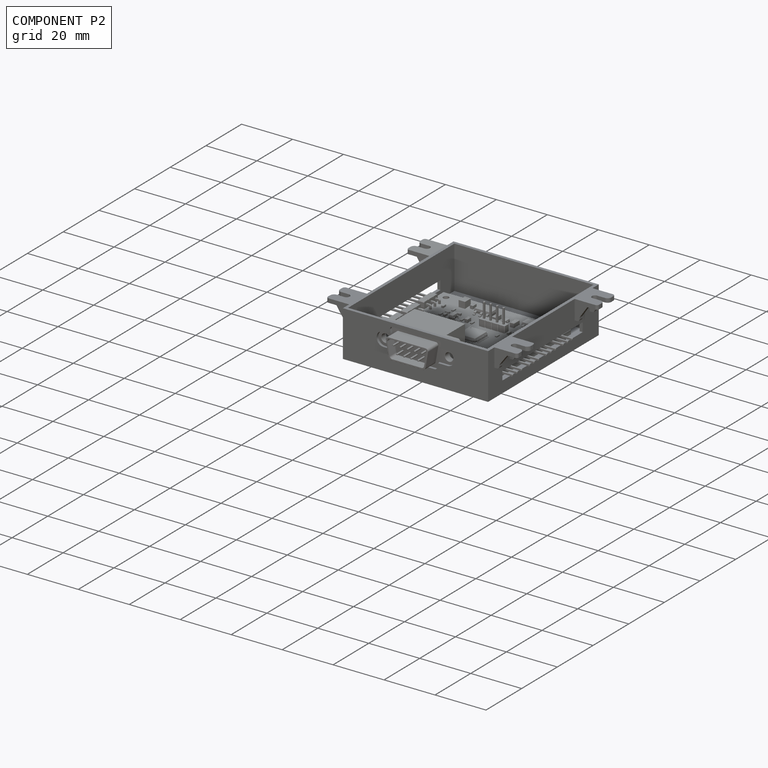
[diagram: component P2 — assembled]
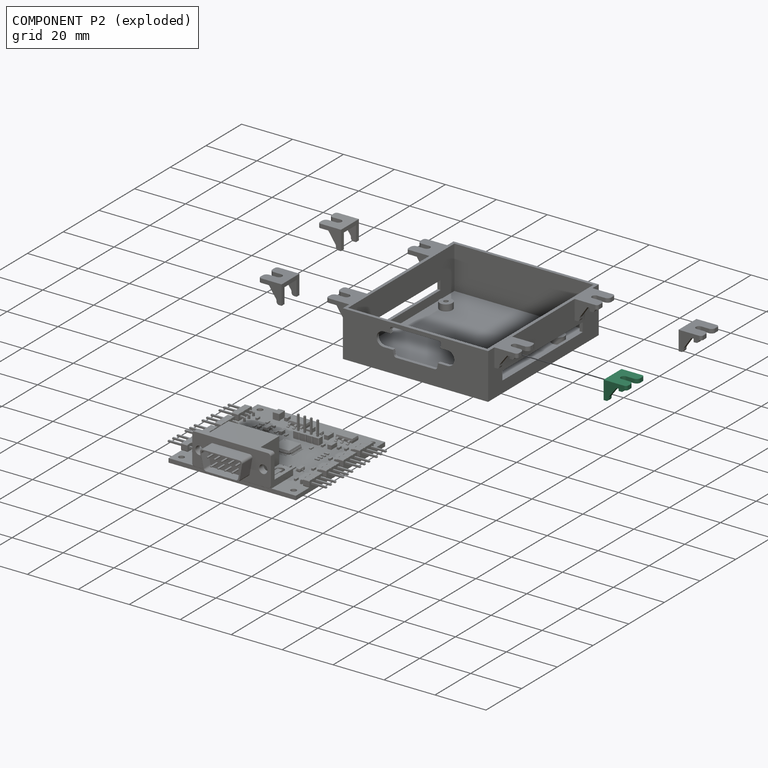
[diagram: component P2 — exploded]
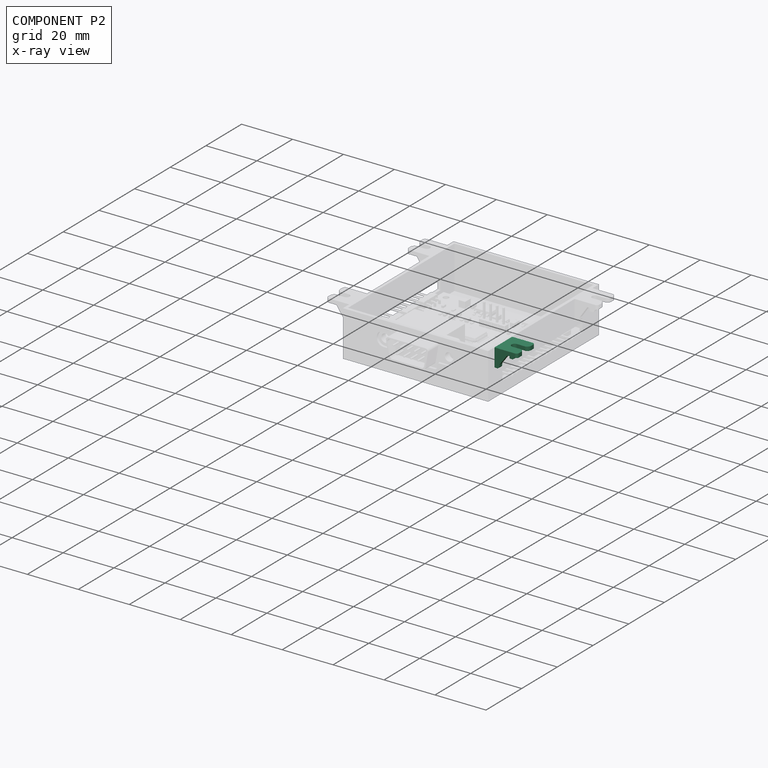
[diagram: component P2 — x-ray view]
COMPONENT P2 — recipe-attached ("Tab1", modeled in this document).
Held by: resting contact with P1 (derived edge).
Construction recipe (the document's own serialized feature program — sketch geometry with constraints, then the solid features built on it; lengths are millimeters unless a unit is written):

FEATURE [Sketcher::SketchObject] Sketch004
  FullyConstrained = true
  MapMode = 5
  Support = -> [XY_Plane009]
  expr: Constraints[13] = <<Params001>>.tab_length
  expr: Constraints[14] = <<Params001>>.tab_width
  expr: Constraints[19] = <<Params001>>.tab_hole_diameter
  expr: Constraints[20] = <<Params001>>.tab_hole_x
  sketch-geometry (8):
    g0: LineSegment StartX=-4.5 StartY=5 StartZ=0 EndX=4.5 EndY=5 EndZ=0
    g1: LineSegment StartX=4.5 StartY=5 StartZ=0 EndX=4.5 EndY=1.25 EndZ=0
    g2: LineSegment StartX=4.5 StartY=-5 StartZ=0 EndX=-4.5 EndY=-5 EndZ=0
    g3: LineSegment StartX=-4.5 StartY=-5 StartZ=0 EndX=-4.5 EndY=5 EndZ=0
    g4: ArcOfCircle CenterX=-1e-16 CenterY=0 CenterZ=0 NormalX=0 NormalY=0 NormalZ=1 AngleXU=0 Radius=1.25 StartAngle=1.5708 EndAngle=4.71239
    g5: LineSegment StartX=-3e-16 StartY=1.25 StartZ=0 EndX=4.5 EndY=1.25 EndZ=0
    g6: LineSegment StartX=4.5 StartY=-1.25 StartZ=0 EndX=0 EndY=-1.25 EndZ=0
    g7: LineSegment StartX=4.5 StartY=-1.25 StartZ=0 EndX=4.5 EndY=-5 EndZ=0
  constraints (21):
    c: Coincident(g0,g1)
    c: Coincident(g7,g2)
    c: Coincident(g2,g3)
    c: Coincident(g3,g0)
    c: Horizontal(g2)
    c: Vertical(g1)
    c: Symmetric(g0,g0,g-2)
    c: Symmetric(g0,g2,g-1)
    c: PointOnObject(g4,g-1)
    c: Horizontal(g5)
    c: Horizontal(g6)
    c: Coincident(g1,g5)
    c: Coincident(g7,g6)
    c: DistanceX(g0,g0) = 9
    c: DistanceY(g2,g0) = 10
    c: Tangent(g4,g5) = 1.5708
    c: Tangent(g6,g4) = 1.5708
    c: Vertical(g7)
    c: Vertical(g6,g1)
    c: Diameter(g4) = 2.5
    c: DistanceX(g0,g4) = 4.5
FEATURE [PartDesign::Pad] Pad002
  Direction = (0,0,1)
  Length = 1.6
  Length2 = 10
  Profile = -> Sketch004
  ReferenceAxis = -> Sketch004 [N_Axis]
  Type = 0
  expr: Length = <<Params001>>.tab_thickness
FEATURE [PartDesign::Plane] DatumPlane002  label="PlaneRib"
  Length = 60
  MapMode = 5
  Placement = pos=(0,-5,0) rot=(1,0,0;1.5708rad)
  ResizeMode = 0
  Support = -> [Pad002]
  Width = 60
FEATURE [Sketcher::SketchObject] Sketch005
  ExternalGeometry = -> [Pad002]
  FullyConstrained = true
  MapMode = 5
  Placement = pos=(0,-5,0) rot=(1,0,0;1.5708rad)
  Support = -> [DatumPlane002]
  expr: Constraints[11] = <<Params001>>.tab_rib_height
  expr: Constraints[12] = <<Params001>>.tab_rib_length
  expr: Constraints[13] = <<Params001>>.tab_rib_insert
  expr: Constraints[6] = <<Params001>>.tab_height
  sketch-geometry (5):
    g0: LineSegment StartX=-4.5 StartY=0 StartZ=0 EndX=-4.5 EndY=-5.6 EndZ=0
    g1: LineSegment StartX=-4.5 StartY=-5.6 StartZ=0 EndX=-2.5 EndY=-5.6 EndZ=0
    g2: LineSegment StartX=0.5 StartY=0 StartZ=0 EndX=-4.5 EndY=0 EndZ=0
    g3: LineSegment StartX=-2.5 StartY=-5.6 StartZ=0 EndX=-2.5 EndY=-4 EndZ=0
    g4: LineSegment StartX=-2.5 StartY=-4 StartZ=0 EndX=0.5 EndY=0 EndZ=0
  constraints (14):
    c: Coincident(g0,g-3)
    c: Vertical(g0)
    c: Coincident(g1,g0)
    c: PointOnObject(g2,g-1)
    c: Coincident(g2,g0)
    c: Horizontal(g1)
    c: DistanceY(g0,g0) = 5.6
    c: Coincident(g3,g1)
    c: Vertical(g3)
    c: Coincident(g4,g3)
    c: Coincident(g4,g2)
    c: DistanceY(g3,g-1) = 4
    c: DistanceX(g0,g2) = 5
    c: DistanceX(g0,g1) = 2
FEATURE [PartDesign::Pad] Pad003  label="TabRib1"
  BaseFeature = -> Pad002
  Direction = (0,-1,2e-16)
  Length = 1.6
  Length2 = 10
  Profile = -> Sketch005
  ReferenceAxis = -> Sketch005 [N_Axis]
  Reversed = true
  Type = 0
  expr: Length = <<Params001>>.tab_rib_thickness
FEATURE [PartDesign::LinearPattern] LinearPattern  label="TabRib2"
  BaseFeature = -> Pad003
  Direction = -> Y_Axis009
  Length = 8.4
  Occurrences = 2
  Originals = -> [Pad003]
  expr: Length = <<Params001>>.tab_ribs_gap
FEATURE [PartDesign::Fillet] Fillet
  Base = -> LinearPattern [Edge51,Edge52]
  BaseFeature = -> LinearPattern
  Radius = 1
  SupportTransform = false
  UseAllEdges = false
FEATURE [PartDesign::Fillet] Fillet001
  Base = -> Fillet [Edge14,Edge52]
  BaseFeature = -> Fillet
  Radius = 1
  SupportTransform = false
  UseAllEdges = false
FEATURE [PartDesign::Fillet] Fillet002
  Base = -> Fillet001 [Edge19,Edge53]
  BaseFeature = -> Fillet001
  Radius = 1
  SupportTransform = false
  UseAllEdges = false
FEATURE [PartDesign::Fillet] Fillet003
  Base = -> Fillet002 [Edge38,Edge43]
  BaseFeature = -> Fillet002
  Radius = 1.5
  SupportTransform = false
  UseAllEdges = false
FEATURE [PartDesign::Body] Body001  label="Tab1"
  Group = -> [Sketch004,Pad002,DatumPlane002,Sketch005,Pad003,LinearPattern,Fillet,Fillet001,Fillet002,Fillet003]
  Origin = -> Origin009
  Placement = pos=(33,-22.5,16.4) rot=(0,0,1;0rad)
  Tip = -> Fillet003
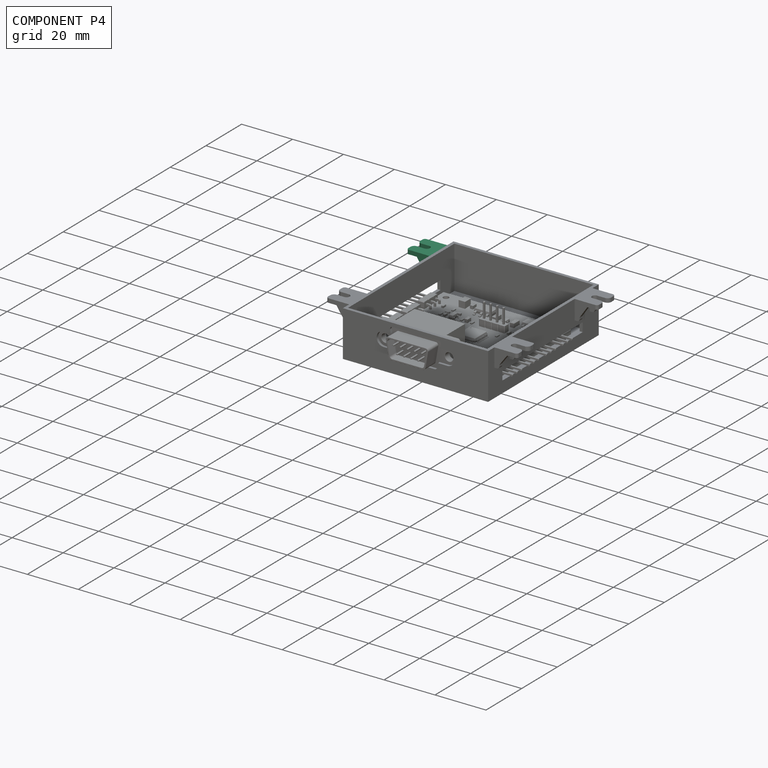
[diagram: component P4 — assembled]
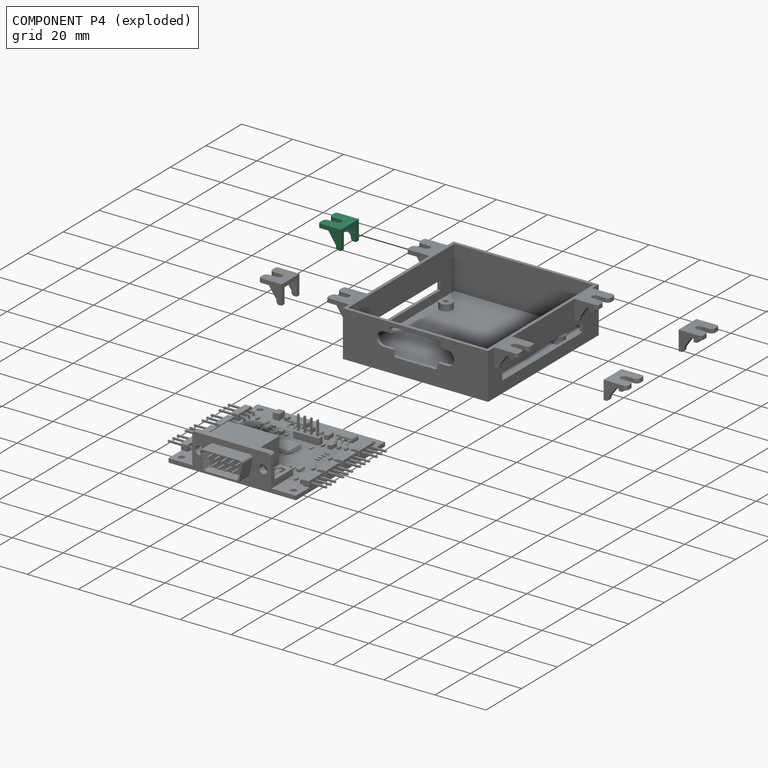
[diagram: component P4 — exploded]
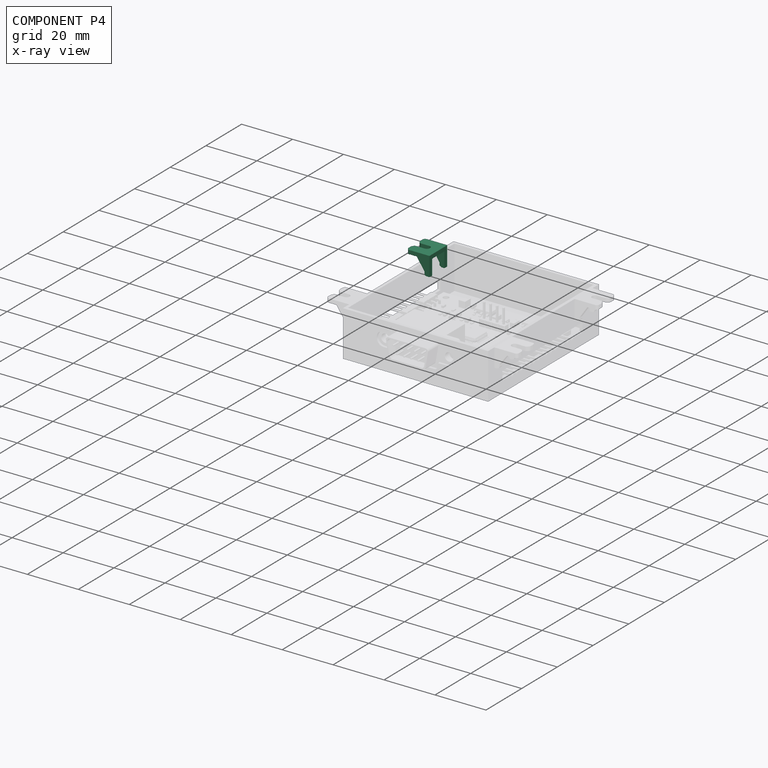
[diagram: component P4 — x-ray view]
COMPONENT P4 — recipe-attached ("Tab3", modeled in this document).
Held by: resting contact with P1 (derived edge).
Construction recipe (the document's own serialized feature program — sketch geometry with constraints, then the solid features built on it; lengths are millimeters unless a unit is written):

FEATURE [Sketcher::SketchObject] Sketch008
  FullyConstrained = true
  MapMode = 5
  Support = -> [XY_Plane011]
  expr: Constraints[13] = <<Params003>>.tab_length
  expr: Constraints[14] = <<Params003>>.tab_width
  expr: Constraints[19] = <<Params003>>.tab_hole_diameter
  expr: Constraints[20] = <<Params003>>.tab_hole_x
  sketch-geometry (8):
    g0: LineSegment StartX=-4.5 StartY=5 StartZ=0 EndX=4.5 EndY=5 EndZ=0
    g1: LineSegment StartX=4.5 StartY=5 StartZ=0 EndX=4.5 EndY=1.25 EndZ=0
    g2: LineSegment StartX=4.5 StartY=-5 StartZ=0 EndX=-4.5 EndY=-5 EndZ=0
    g3: LineSegment StartX=-4.5 StartY=-5 StartZ=0 EndX=-4.5 EndY=5 EndZ=0
    g4: ArcOfCircle CenterX=-1e-16 CenterY=0 CenterZ=0 NormalX=0 NormalY=0 NormalZ=1 AngleXU=0 Radius=1.25 StartAngle=1.5708 EndAngle=4.71239
    g5: LineSegment StartX=-3e-16 StartY=1.25 StartZ=0 EndX=4.5 EndY=1.25 EndZ=0
    g6: LineSegment StartX=4.5 StartY=-1.25 StartZ=0 EndX=0 EndY=-1.25 EndZ=0
    g7: LineSegment StartX=4.5 StartY=-1.25 StartZ=0 EndX=4.5 EndY=-5 EndZ=0
  constraints (21):
    c: Coincident(g0,g1)
    c: Coincident(g7,g2)
    c: Coincident(g2,g3)
    c: Coincident(g3,g0)
    c: Horizontal(g2)
    c: Vertical(g1)
    c: Symmetric(g0,g0,g-2)
    c: Symmetric(g0,g2,g-1)
    c: PointOnObject(g4,g-1)
    c: Horizontal(g5)
    c: Horizontal(g6)
    c: Coincident(g1,g5)
    c: Coincident(g7,g6)
    c: DistanceX(g0,g0) = 9
    c: DistanceY(g2,g0) = 10
    c: Tangent(g4,g5) = 1.5708
    c: Tangent(g6,g4) = 1.5708
    c: Vertical(g7)
    c: Vertical(g6,g1)
    c: Diameter(g4) = 2.5
    c: DistanceX(g0,g4) = 4.5
FEATURE [PartDesign::Pad] Pad006
  Direction = (0,0,1)
  Length = 1.6
  Length2 = 10
  Profile = -> Sketch008
  ReferenceAxis = -> Sketch008 [N_Axis]
  Type = 0
  expr: Length = <<Params003>>.tab_thickness
FEATURE [PartDesign::Plane] DatumPlane004  label="PlaneRib002"
  Length = 60
  MapMode = 5
  Placement = pos=(0,-5,0) rot=(1,0,0;1.5708rad)
  ResizeMode = 0
  Support = -> [Pad006]
  Width = 60
FEATURE [Sketcher::SketchObject] Sketch009
  ExternalGeometry = -> [Pad006]
  FullyConstrained = true
  MapMode = 5
  Placement = pos=(0,-5,0) rot=(1,0,0;1.5708rad)
  Support = -> [DatumPlane004]
  expr: Constraints[11] = <<Params003>>.tab_rib_height
  expr: Constraints[12] = <<Params003>>.tab_rib_length
  expr: Constraints[13] = <<Params003>>.tab_rib_insert
  expr: Constraints[6] = <<Params003>>.tab_height
  sketch-geometry (5):
    g0: LineSegment StartX=-4.5 StartY=0 StartZ=0 EndX=-4.5 EndY=-6 EndZ=0
    g1: LineSegment StartX=-4.5 StartY=-6 StartZ=0 EndX=-2.5 EndY=-6 EndZ=0
    g2: LineSegment StartX=0.5 StartY=0 StartZ=0 EndX=-4.5 EndY=0 EndZ=0
    g3: LineSegment StartX=-2.5 StartY=-6 StartZ=0 EndX=-2.5 EndY=-4.4 EndZ=0
    g4: LineSegment StartX=-2.5 StartY=-4.4 StartZ=0 EndX=0.5 EndY=0 EndZ=0
  constraints (14):
    c: Coincident(g0,g-3)
    c: Vertical(g0)
    c: Coincident(g1,g0)
    c: PointOnObject(g2,g-1)
    c: Coincident(g2,g0)
    c: Horizontal(g1)
    c: DistanceY(g0,g0) = 6
    c: Coincident(g3,g1)
    c: Vertical(g3)
    c: Coincident(g4,g3)
    c: Coincident(g4,g2)
    c: DistanceY(g3,g-1) = 4.4
    c: DistanceX(g0,g2) = 5
    c: DistanceX(g0,g1) = 2
FEATURE [PartDesign::Pad] Pad007  label="TabRib006"
  BaseFeature = -> Pad006
  Direction = (0,-1,2e-16)
  Length = 1.6
  Length2 = 10
  Profile = -> Sketch009
  ReferenceAxis = -> Sketch009 [N_Axis]
  Reversed = true
  Type = 0
  expr: Length = <<Params003>>.tab_rib_thickness
FEATURE [PartDesign::LinearPattern] LinearPattern002  label="TabRib005"
  BaseFeature = -> Pad007
  Direction = -> Y_Axis011
  Length = 8.4
  Occurrences = 2
  Originals = -> [Pad007]
  expr: Length = <<Params003>>.tab_ribs_gap
FEATURE [PartDesign::Fillet] Fillet008
  Base = -> LinearPattern002 [Edge51,Edge52]
  BaseFeature = -> LinearPattern002
  Radius = 1
  SupportTransform = false
  UseAllEdges = false
FEATURE [PartDesign::Fillet] Fillet009
  Base = -> Fillet008 [Edge14,Edge52]
  BaseFeature = -> Fillet008
  Radius = 1
  SupportTransform = false
  UseAllEdges = false
FEATURE [PartDesign::Fillet] Fillet010
  Base = -> Fillet009 [Edge19,Edge53]
  BaseFeature = -> Fillet009
  Radius = 1
  SupportTransform = false
  UseAllEdges = false
FEATURE [PartDesign::Fillet] Fillet011
  Base = -> Fillet010 [Edge38,Edge43]
  BaseFeature = -> Fillet010
  Radius = 1.5
  SupportTransform = false
  UseAllEdges = false
FEATURE [PartDesign::Body] Body003  label="Tab3"
  Group = -> [Sketch008,Pad006,DatumPlane004,Sketch009,Pad007,LinearPattern002,Fillet008,Fillet009,Fillet010,Fillet011]
  Origin = -> Origin011
  Placement = pos=(-33,22.5,16.4) rot=(0,0,1;3.14159rad)
  Tip = -> Fillet011
PROVENANCE & LICENSES
Assembly and component geometry: a FreeCAD (.FCStd) document from a public repository crawl; components, placements and joints were extracted with FreeCAD and each solid tessellated.
Construction recipes: the document's own serialized feature recipes (and, for linked parts, the recipes of companion documents from the same project).
License: as declared in the source repository (recorded in the dataset sidecar).
Joints: native FreeCAD joints and A2plus constraints are mapped to standard mate types; edges marked 'derived from contact' connect touching components and are measured from the geometry, not modeled.
Verification: 5 of this assembly's 6 components carry a construction recipe (5 from this document itself); the rest are geometry-only. Every component's tessellation passed the extraction mesh gates (mesh-volume checksum against the B-rep where available, bounding-box inflation <= 2%).
Renders: orthographic iso camera (az 35 / el 25); the floor grid conveys scale (grid pitch printed in each image; no ruler). In the exploded view each component is displaced by its stored offset vector: the offsets alone carry the explosion direction (mate normal/axis signs are not orientation cues and do not encode it), and separation distances are assigned per mate-chain, not proportionally to assembly-order depth.
